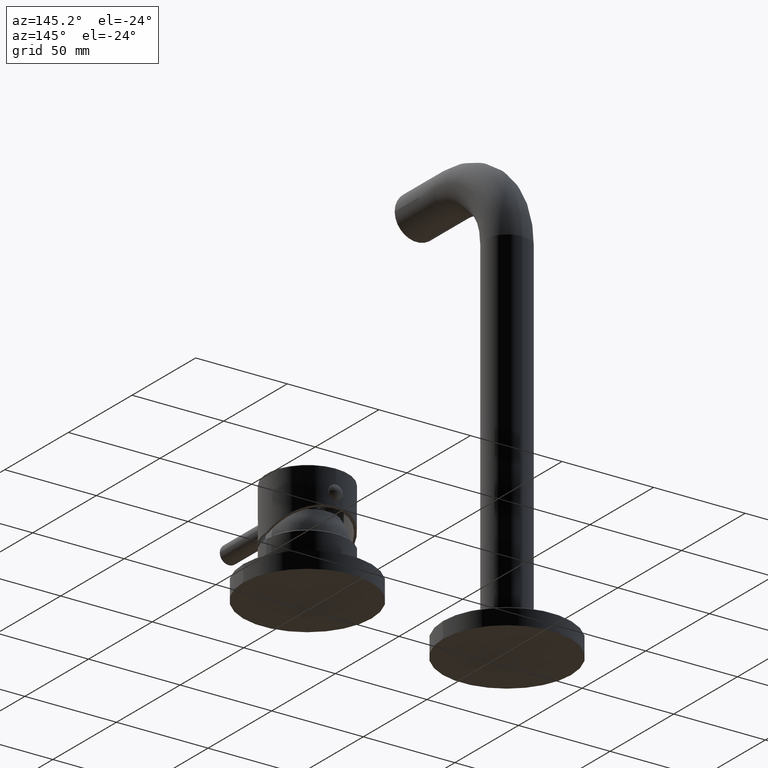
[diagram: clean part render]
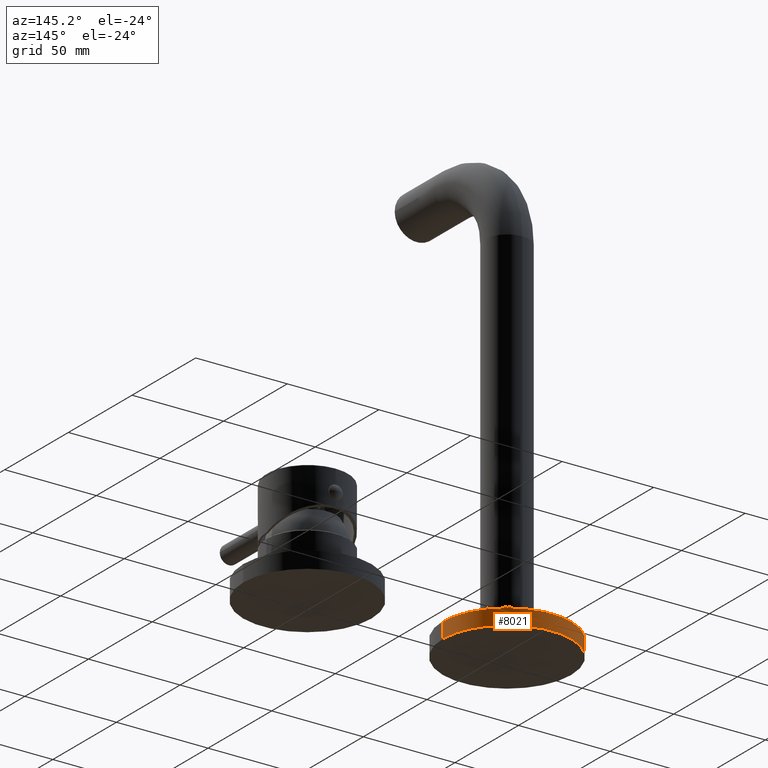
[diagram: same view with one face highlighted and labeled with its STEP entity id]
A machine part, auxiliary view. The second image highlights one B-rep face of the part: STEP entity #8021.
In plain terms, the highlighted cylindrical surface (partial cylindrical patch) has radius 35 mm, axis along (0, 0, -1).
Its self-contained STEP definition (entity closure, byte-faithful):
#7695=CARTESIAN_POINT('',(-1.09E2,0.E0,5.E1));
#7696=DIRECTION('',(0.E0,0.E0,1.E0));
#7697=DIRECTION('',(1.E0,0.E0,0.E0));
#7698=AXIS2_PLACEMENT_3D('',#7695,#7696,#7697);
#7700=CARTESIAN_POINT('',(-1.09E2,0.E0,4.15E1));
#7701=DIRECTION('',(0.E0,0.E0,-1.E0));
#7702=DIRECTION('',(-1.E0,0.E0,0.E0));
#7703=AXIS2_PLACEMENT_3D('',#7700,#7701,#7702);
#7710=DIRECTION('',(0.E0,-9.623586630459E-12,1.E0));
#7711=VECTOR('',#7710,8.5E0);
#7712=CARTESIAN_POINT('',(-7.4E1,0.E0,4.15E1));
#7713=LINE('',#7712,#7711);
#7719=DIRECTION('',(0.E0,9.625949585937E-12,1.E0));
#7720=VECTOR('',#7719,8.5E0);
#7721=CARTESIAN_POINT('',(-1.44E2,0.E0,4.15E1));
#7722=LINE('',#7721,#7720);
#7776=CARTESIAN_POINT('',(-1.44E2,0.E0,4.15E1));
#7777=CARTESIAN_POINT('',(-7.4E1,0.E0,4.15E1));
#7778=VERTEX_POINT('',#7776);
#7779=VERTEX_POINT('',#7777);
#7784=CARTESIAN_POINT('',(-1.44E2,2.025802252147E-14,5.E1));
#7785=CARTESIAN_POINT('',(-7.4E1,-2.368701355908E-14,5.E1));
#7786=VERTEX_POINT('',#7784);
#7787=VERTEX_POINT('',#7785);
#8007=CARTESIAN_POINT('',(-1.09E2,0.E0,5.095E1));
#8008=DIRECTION('',(0.E0,0.E0,-1.E0));
#8009=DIRECTION('',(1.E0,0.E0,0.E0));
#8010=AXIS2_PLACEMENT_3D('',#8007,#8008,#8009);
#8011=CYLINDRICAL_SURFACE('',#8010,3.5E1);
#8012=ORIENTED_EDGE('',*,*,#7994,.T.);
#8014=ORIENTED_EDGE('',*,*,#8013,.F.);
#8016=ORIENTED_EDGE('',*,*,#8015,.T.);
#8018=ORIENTED_EDGE('',*,*,#8017,.T.);
#8019=EDGE_LOOP('',(#8012,#8014,#8016,#8018));
#8020=FACE_OUTER_BOUND('',#8019,.F.);
#8021=ADVANCED_FACE('',(#8020),#8011,.T.);
#7699=CIRCLE('',#7698,3.5E1);
#7704=CIRCLE('',#7703,3.5E1);
#7994=EDGE_CURVE('',#7787,#7786,#7699,.T.);
#8013=EDGE_CURVE('',#7778,#7786,#7722,.T.);
#8015=EDGE_CURVE('',#7778,#7779,#7704,.T.);
#8017=EDGE_CURVE('',#7779,#7787,#7713,.T.);